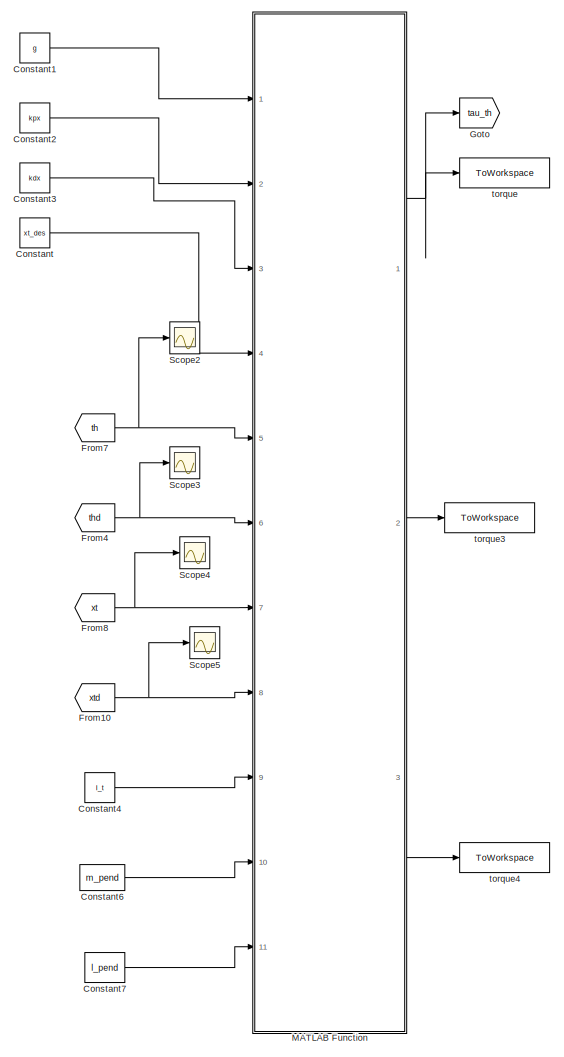
[diagram: root canvas - part 1/2, left side, full height]
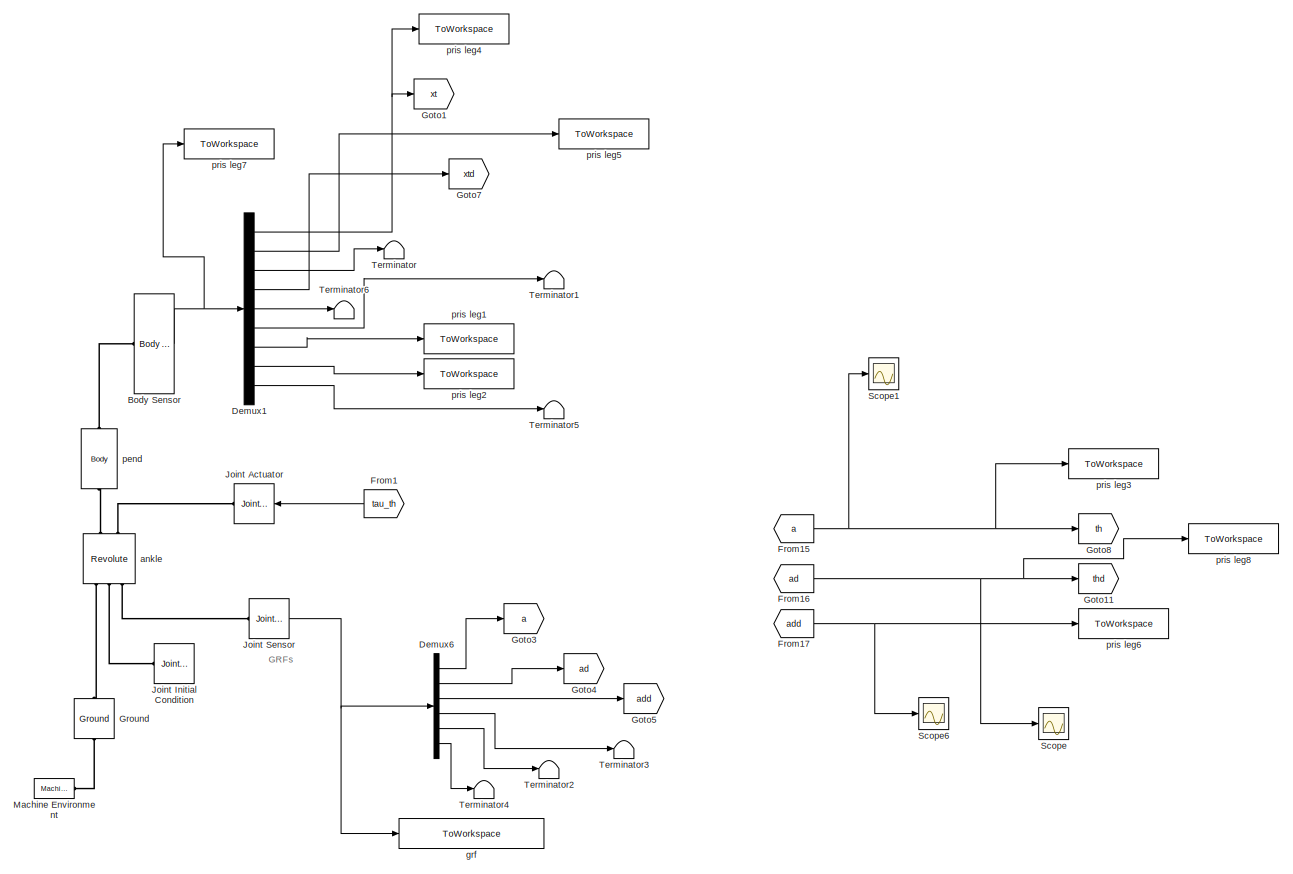
[diagram: root canvas - part 2/2, center side, full height]
MODEL slx_58bc6cb92533
KIND model
BLOCK [Reference] Body Sensor  REF=mblibv1/Sensors & 
Actuators/Body Sensor
  Acceleration = on
  AccelerationUnits = m/s^2
  ActiveIO = on
  Angle = on
  AngleUnits = deg
  ArcAcceleration = off
  ArcAccelerationUnits = deg/s^2
  ArcVelocity = off
  ArcVelocityUnits = deg/s
  ClassName = BodySensor
  CoordPosition = on
  CoordPositionUnits = m
  DialogClass = MechanicalSensorBlock
  Muxed = on
  OutputVector = [1]
  PhysicalDomain = Mechanical
  PortType = blob
  Ports = [0, 1, 0, 0, 0, 1]
  Pose = off
  Quaternion = on
  QuaternionDDT = off
  QuaternionDT = off
  QuaternionUnits = off
  ReferenceFrame = Absolute (World)
  SourceBlock = mblibv1/Sensors & \nActuators/Body Sensor
  SourceType = Body Sensor
  UpdateFromCAD = off
  Velocity = on
  VelocityUnits = m/s
  Width = 9
BLOCK [Constant] Constant
  Value = xt_des
BLOCK [Constant] Constant1
  Value = g
BLOCK [Constant] Constant2
  Value = kpx
BLOCK [Constant] Constant3
  Value = kdx
BLOCK [Constant] Constant4
  Value = I_t
BLOCK [Constant] Constant6
  Value = m_pend
BLOCK [Constant] Constant7
  Value = l_pend
BLOCK [Demux] Demux1
  DisplayOption = bar
  Outputs = 9
  Ports = [1, 9]
BLOCK [Demux] Demux6
  DisplayOption = bar
  Outputs = 6
  Ports = [1, 6]
BLOCK [From] From1
  GotoTag = tau_th
BLOCK [From] From10
  GotoTag = xtd
BLOCK [From] From15
  GotoTag = a
BLOCK [From] From16
  GotoTag = ad
BLOCK [From] From17
  GotoTag = add
BLOCK [From] From4
  GotoTag = thd
BLOCK [From] From7
  GotoTag = th
BLOCK [From] From8
  GotoTag = xt
BLOCK [Goto] Goto
  GotoTag = tau_th
BLOCK [Goto] Goto1
  GotoTag = xt
BLOCK [Goto] Goto11
  GotoTag = thd
BLOCK [Goto] Goto3
  GotoTag = a
BLOCK [Goto] Goto4
  GotoTag = ad
BLOCK [Goto] Goto5
  GotoTag = add
BLOCK [Goto] Goto7
  GotoTag = xtd
BLOCK [Goto] Goto8
  GotoTag = th
BLOCK [Reference] Ground  REF=mblibv1/Bodies/Ground
  ClassName = Ground
  CoordPosition = [0 0 0]
  CoordPositionUnits = m
  DialogClass = GroundBlock
  LeftPortType = env
  MachineId = [1 0]
  PhysicalDomain = Mechanical
  Ports = [0, 0, 0, 0, 0, 1, 1]
  RightPortType = workingframe
  ShowEnvPort = on
  SourceBlock = mblibv1/Bodies/Ground
  SourceType = Ground
  StateVectorMgrId = 0
  UpdateFromCAD = off
  UserDataPersistent = on
BLOCK [Reference] Joint Actuator  REF=mblibv1/Sensors & 
Actuators/Joint Actuator
  AccelerationUnits = m/s^2
  ActiveIO = on
  ActuationStyle = Force
  AngleUnits = deg
  ArcAccelerationUnits = deg/s^2
  ArcVelocityUnits = deg/s
  ClassName = JointActuator
  CoordPositionUnits = m
  DialogClass = MechanicalActuatorBlock
  ForceUnits = N
  PhysicalDomain = Mechanical
  PortType = blob
  Ports = [1, 0, 0, 0, 0, 0, 1]
  Primitive = R1
  ReferenceFrame = Absolute (World)
  SourceBlock = mblibv1/Sensors & \nActuators/Joint Actuator
  SourceType = Joint Actuator
  TorqueUnits = N*m
  UpdateFromCAD = off
  VelocityUnits = m/s
  Width = 1
BLOCK [Reference] Joint Initial Condition  REF=mblibv1/Sensors & 
Actuators/Joint Initial Condition
  ClassName = InitialCondition
  DialogClass = InitialConditionBlock
  InitialConditions = P1$false$0$m$deg$0$m/s$deg/s#P2$false$0$m$deg$0$m/s$deg/s#P3$false$0$m$deg$0$m/s$deg/s#R1$true$th_angle_init$m$rad$0$m/s$rad/s#R2$false$0$m$deg$0$m/s$deg/s#R3$false$0$m$deg$0$m/s$deg/s#S$false$0$m$deg$0$m/s$deg/s
  LeftPortType = blob
  P1PIC = 0
  P1VIC = 0
  P2PIC = 0
  P2VIC = 0
  P3PIC = 0
  P3VIC = 0
  PhysicalDomain = mechanical
  Ports = [0, 0, 0, 0, 0, 0, 1]
  R1PIC = th_angle_init
  R1VIC = 0
  R2PIC = 0
  R2VIC = 0
  R3PIC = 0
  R3VIC = 0
  RightPortType = blob
  SPIC = 0
  SVIC = 0
  SourceBlock = mblibv1/Sensors & \nActuators/Joint Initial Condition
  SourceType = Joint Initial Condition
  UpdateFromCAD = off
BLOCK [Reference] Joint Sensor  REF=mblibv1/Sensors & 
Actuators/Joint Sensor
  Acceleration = off
  AccelerationUnits = m/s^2
  ActiveIO = on
  Angle = on
  AngleUnits = rad
  ArcAcceleration = on
  ArcAccelerationUnits = rad/s^2
  ArcVelocity = on
  ArcVelocityUnits = rad/s
  ClassName = JointSensor
  CoordPosition = on
  CoordPositionUnits = m
  DialogClass = MechanicalSensorBlock
  Force = off
  ForceUnits = N
  Muxed = on
  OutputVector = [1]
  PhysicalDomain = Mechanical
  PortType = blob
  Ports = [0, 1, 0, 0, 0, 1]
  Pose = off
  Primitive = R1
  Quaternion = on
  QuaternionDDT = off
  QuaternionDT = off
  QuaternionUnits = off
  ReactionForce = on
  ReactionForceUnits = N
  ReactionMoment = off
  ReactionMomentUnits = N*m
  ReactionReferenceFrame = Absolute (World)
  ReactionSensedSide = Follower
  ReferenceFrame = Absolute (World)
  SourceBlock = mblibv1/Sensors & \nActuators/Joint Sensor
  SourceType = Joint Sensor
  Torque = off
  TorqueUnits = N*m
  UpdateFromCAD = off
  Velocity = off
  VelocityUnits = m/s
  Width = 6
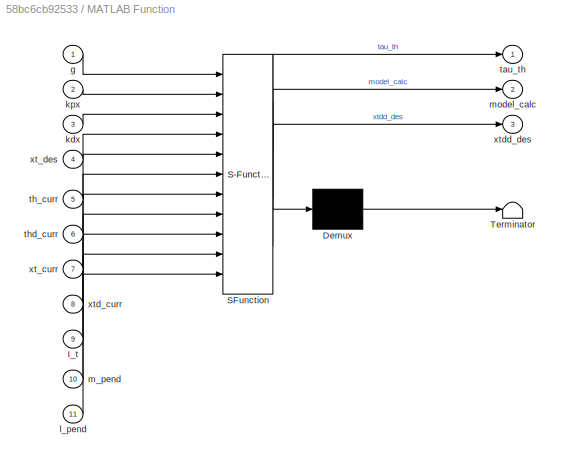
BLOCK [SubSystem] MATLAB Function
  ErrorFcn = Stateflow.Translate.translate
  FunctionWithSeparateData = off
  MaskHideContents = off
  MinAlgLoopOccurrences = off
  Opaque = off
  PermitHierarchicalResolution = ExplicitOnly
  Ports = [11, 3]
  PropExecContextOutsideSubsystem = off
  RTWSystemCode = Auto
  RequestExecContextInheritance = off
  SFBlockType = MATLAB Function
  TreatAsAtomicUnit = on
BLOCK [Demux] MATLAB Function/ Demux 
  Outputs = 1
  Ports = [1, 1]
BLOCK [S-Function] MATLAB Function/ SFunction 
  EnableBusSupport = on
  FunctionName = sf_sfun
  PortCounts = [11 4]
  Ports = [11, 4]
  Tag = Stateflow S-Function PMMUnderActuated_1stgen_invPend 2
BLOCK [Terminator] MATLAB Function/ Terminator 
BLOCK [Inport] MATLAB Function/I_t
  IconDisplay = Port number
  Port = 9
BLOCK [Inport] MATLAB Function/g
  IconDisplay = Port number
BLOCK [Inport] MATLAB Function/kdx
  IconDisplay = Port number
  Port = 3
BLOCK [Inport] MATLAB Function/kpx
  IconDisplay = Port number
  Port = 2
BLOCK [Inport] MATLAB Function/l_pend
  IconDisplay = Port number
  Port = 11
BLOCK [Inport] MATLAB Function/m_pend
  IconDisplay = Port number
  Port = 10
BLOCK [Outport] MATLAB Function/model_calc
  IconDisplay = Port number
  Port = 2
BLOCK [Outport] MATLAB Function/tau_th
  IconDisplay = Port number
BLOCK [Inport] MATLAB Function/th_curr
  IconDisplay = Port number
  Port = 5
BLOCK [Inport] MATLAB Function/thd_curr
  IconDisplay = Port number
  Port = 6
BLOCK [Inport] MATLAB Function/xt_curr
  IconDisplay = Port number
  Port = 7
BLOCK [Inport] MATLAB Function/xt_des
  IconDisplay = Port number
  Port = 4
BLOCK [Inport] MATLAB Function/xtd_curr
  IconDisplay = Port number
  Port = 8
BLOCK [Outport] MATLAB Function/xtdd_des
  IconDisplay = Port number
  Port = 3
BLOCK [Reference] Machine Environment  REF=mblibv1/Bodies/Machine
Environment
  AnalysisType = Forward dynamics
  AngularAssemblyTolerance = 1e-3
  AngularAssemblyToleranceUnits = rad
  BodyColorSelMode = Use model default
  BodyVisualizationType = Use model default body geometries
  ClassName = Environment
  ConstraintAbsTolerance = 1e-4
  ConstraintRelTolerance = 1e-4
  ConstraintSolverType = Stabilizing
  DefaultBodyColor = [1 0 0]
  DialogTemplateClass = MECH.MachineEnvironment
  Dimensionality = 2D Only
  Gravity = [0 -9.81 0]
  GravityAsSignal = off
  GravityUnits = m/s^2
  LinearAssemblyTolerance = 1e-3
  LinearAssemblyToleranceUnits = m
  PerturbationSize = 1e-5
  PhysicalDomain = Mechanical
  PortType = env
  Ports = [0, 0, 0, 0, 0, 0, 1]
  RedundancyAnalysisTolerance = 1e-14
  RedundancyAnalysisToleranceType = Automatically select tolerance
  SourceBlock = mblibv1/Bodies/Machine\nEnvironment
  SourceType = Machine Environment
  StatePerturbationType = Fixed
  SyncWhenCopied = off
  UseRobustSingularityHandling = off
  VisualizeMachine = on
BLOCK [Scope] Scope
  DataFormat = StructureWithTime
  Floating = off
  NumInputPorts = 1
  Ports = [1]
  SampleTime = 0
  ShowLegends = off
BLOCK [Scope] Scope1
  DataFormat = StructureWithTime
  Floating = off
  NumInputPorts = 1
  Ports = [1]
  SampleTime = 0
  SaveName = ScopeData1
  ShowLegends = off
BLOCK [Scope] Scope2
  DataFormat = StructureWithTime
  Floating = off
  NumInputPorts = 1
  Ports = [1]
  SampleTime = 0
  SaveName = ScopeData2
  ShowLegends = off
BLOCK [Scope] Scope3
  DataFormat = StructureWithTime
  Floating = off
  NumInputPorts = 1
  Ports = [1]
  SampleTime = 0
  SaveName = ScopeData3
  ShowLegends = off
BLOCK [Scope] Scope4
  DataFormat = StructureWithTime
  Floating = off
  NumInputPorts = 1
  Ports = [1]
  SampleTime = 0
  SaveName = ScopeData4
  ShowLegends = off
BLOCK [Scope] Scope5
  DataFormat = StructureWithTime
  Floating = off
  NumInputPorts = 1
  Ports = [1]
  SampleTime = 0
  SaveName = ScopeData5
  ShowLegends = off
BLOCK [Scope] Scope6
  DataFormat = StructureWithTime
  Floating = off
  NumInputPorts = 1
  Ports = [1]
  SampleTime = 0
  SaveName = ScopeData6
  ShowLegends = off
BLOCK [Terminator] Terminator
BLOCK [Terminator] Terminator1
BLOCK [Terminator] Terminator2
BLOCK [Terminator] Terminator3
BLOCK [Terminator] Terminator4
BLOCK [Terminator] Terminator5
BLOCK [Terminator] Terminator6
BLOCK [Reference] ankle  REF=mblibv1/Joints/Revolute
  ClassName = Joint
  CutJoint = off
  DialogClass = JointBlock
  LConnTagsString = __newl0|SA1|SA2
  MarkAsCut = off
  NumSAPorts = 3
  Ports = [0, 0, 0, 0, 0, 3, 2]
  PrimitiveProps = R1$World$[0 0 -1]$revolute
  Primitives = prismatic
  R1Axis = [0 0 -1]
  RConnTagsString = __newr0|SA1
  SourceBlock = mblibv1/Joints/Revolute
  SourceType = Revolute
  UpdateFromCAD = off
BLOCK [ToWorkspace] grf
  FixptAsFi = on
  MaxDataPoints = inf
  Ports = [1]
  SampleTime = -1
  VariableName = a_ad_add_grfx_grfy_grfz
BLOCK [Reference] pend  REF=mblibv1/Bodies/Body
  AttachedToCS = CG
  BodyColor = [1 0 0]
  BodyColorSelMode = MACHINE_DEFAULT
  CG = Left$CG$[0 l_pend 0]$CS1$CS1$m$[0 0 0]$Euler X-Y-Z$deg$WORLD$false$none
  CGPos = [0 l_pend 0]
  CGRot = [0 0 0]
  CS0Pos = []
  CS0Rot = []
  CS10Pos = []
  CS10Rot = []
  CS11Pos = []
  CS11Rot = []
  CS12Pos = []
  CS12Rot = []
  CS13Pos = []
  CS13Rot = []
  CS14Pos = []
  CS14Rot = []
  CS15Pos = []
  CS15Rot = []
  CS16Pos = []
  CS16Rot = []
  CS17Pos = []
  CS17Rot = []
  CS18Pos = []
  CS18Rot = []
  CS19Pos = []
  CS19Rot = []
  CS1Pos = [0 0 0]
  CS1Rot = [0 0 0]
  CS20Pos = []
  CS20Rot = []
  CS2Pos = [0 l_pend 0]
  CS2Rot = [0 0 0]
  CS3Pos = []
  CS3Rot = []
  CS4Pos = []
  CS4Rot = []
  CS5Pos = []
  CS5Rot = []
  CS6Pos = []
  CS6Rot = []
  CS7Pos = []
  CS7Rot = []
  CS8Pos = []
  CS8Rot = []
  CS9Pos = []
  CS9Rot = []
  ClassName = Body
  Density = 1
  DensityUnits = kg/m^3
  DensityUse = false
  DialogClass = MechanicalBodyBlock
  GraphicsMode = MACHINE_DEFAULT
  Inertia = [0 0 0; 0 0 0; 0 0 -I_t]
  InertiaUnits = kg*m^2
  LConnTagsString = CS1
  Mass = m_pend
  MassUnits = kg
  Ports = [0, 0, 0, 0, 0, 1, 1]
  RConnTagsString = CS2
  Shape = Cylinder
  ShapeDims = [1 1]
  ShapeUnits = m
  ShapeUse = false
  SourceBlock = mblibv1/Bodies/Body
  SourceType = Body
  UpdateFromCAD = off
  WorkingFrames = Left$CS1$[0 0 0]$Adjoining$Adjoining$m$[0 0 0]$Euler X-Y-Z$deg$WORLD$true$none#Right$CS2$[0 l_pend 0]$CS1$CS1$m$[0 0 0]$Euler X-Y-Z$deg$WORLD$true$none
BLOCK [ToWorkspace] pris leg1
  FixptAsFi = on
  MaxDataPoints = inf
  Ports = [1]
  SampleTime = -1
  VariableName = xtdd_meas
BLOCK [ToWorkspace] pris leg2
  FixptAsFi = on
  MaxDataPoints = inf
  Ports = [1]
  SampleTime = -1
  VariableName = ytdd_meas
BLOCK [ToWorkspace] pris leg3
  FixptAsFi = on
  MaxDataPoints = inf
  Ports = [1]
  SampleTime = -1
  VariableName = th_meas
BLOCK [ToWorkspace] pris leg4
  FixptAsFi = on
  MaxDataPoints = inf
  Ports = [1]
  SampleTime = -1
  VariableName = xt_meas
BLOCK [ToWorkspace] pris leg5
  FixptAsFi = on
  MaxDataPoints = inf
  Ports = [1]
  SampleTime = -1
  VariableName = yt_meas
BLOCK [ToWorkspace] pris leg6
  FixptAsFi = on
  MaxDataPoints = inf
  Ports = [1]
  SampleTime = -1
  VariableName = thdd_meas
BLOCK [ToWorkspace] pris leg7
  FixptAsFi = on
  MaxDataPoints = inf
  Ports = [1]
  SampleTime = -1
  VariableName = torso_meas
BLOCK [ToWorkspace] pris leg8
  FixptAsFi = on
  MaxDataPoints = inf
  Ports = [1]
  SampleTime = -1
  VariableName = thd_meas
BLOCK [ToWorkspace] torque
  FixptAsFi = on
  MaxDataPoints = inf
  Ports = [1]
  SampleTime = -1
  VariableName = tau_th
BLOCK [ToWorkspace] torque3
  FixptAsFi = on
  MaxDataPoints = inf
  Ports = [1]
  SampleTime = -1
  VariableName = model_calc
BLOCK [ToWorkspace] torque4
  FixptAsFi = on
  MaxDataPoints = inf
  Ports = [1]
  SampleTime = -1
  VariableName = xtdd_des
ANNOTATION (root): GRFs
NET Body Sensor:1 -> Demux1:1, pris leg7:1
LINE Constant1:1 -> MATLAB Function:1
LINE Constant2:1 -> MATLAB Function:2
LINE Constant3:1 -> MATLAB Function:3
LINE Constant4:1 -> MATLAB Function:9
LINE Constant6:1 -> MATLAB Function:10
LINE Constant7:1 -> MATLAB Function:11
LINE Constant:1 -> MATLAB Function:4
NET Demux1:1 -> Goto1:1, pris leg4:1
LINE Demux1:2 -> pris leg5:1
LINE Demux1:3 -> Terminator:1
LINE Demux1:4 -> Goto7:1
LINE Demux1:5 -> Terminator6:1
LINE Demux1:6 -> Terminator1:1
LINE Demux1:7 -> pris leg1:1
LINE Demux1:8 -> pris leg2:1
LINE Demux1:9 -> Terminator5:1
LINE Demux6:1 -> Goto3:1
LINE Demux6:2 -> Goto4:1
LINE Demux6:3 -> Goto5:1
LINE Demux6:4 -> Terminator3:1
LINE Demux6:5 -> Terminator2:1
LINE Demux6:6 -> Terminator4:1
NET From10:1 -> MATLAB Function:8, Scope5:1
NET From15:1 -> Goto8:1, Scope1:1, pris leg3:1
NET From16:1 -> Goto11:1, Scope:1, pris leg8:1
NET From17:1 -> Scope6:1, pris leg6:1
LINE From1:1 -> Joint Actuator:1
NET From4:1 -> MATLAB Function:6, Scope3:1
NET From7:1 -> MATLAB Function:5, Scope2:1
NET From8:1 -> MATLAB Function:7, Scope4:1
NET Joint Sensor:1 -> Demux6:1, grf:1
NET MATLAB Function:1 -> Goto:1, torque:1
LINE MATLAB Function:2 -> torque3:1
LINE MATLAB Function:3 -> torque4:1
PLINE Body Sensor:LConn1 -- pend:RConn1
PLINE Ground:LConn1 -- Machine Environment:RConn1
PLINE Ground:RConn1 -- ankle:LConn1
PLINE Joint Actuator:RConn1 -- ankle:RConn2
PLINE Joint Initial Condition:RConn1 -- ankle:LConn2
PLINE Joint Sensor:LConn1 -- ankle:LConn3
PLINE ankle:RConn1 -- pend:LConn1
note: NET lines group one-source signal fan-out (src -> all destinations, sorted); 1:1 wires keep LINE
